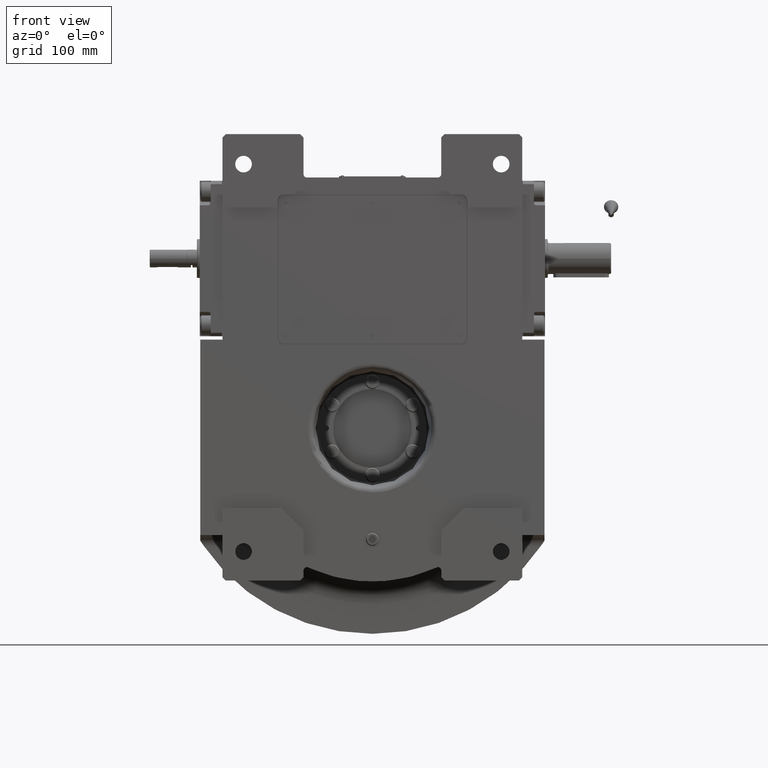
[diagram: clean part render]
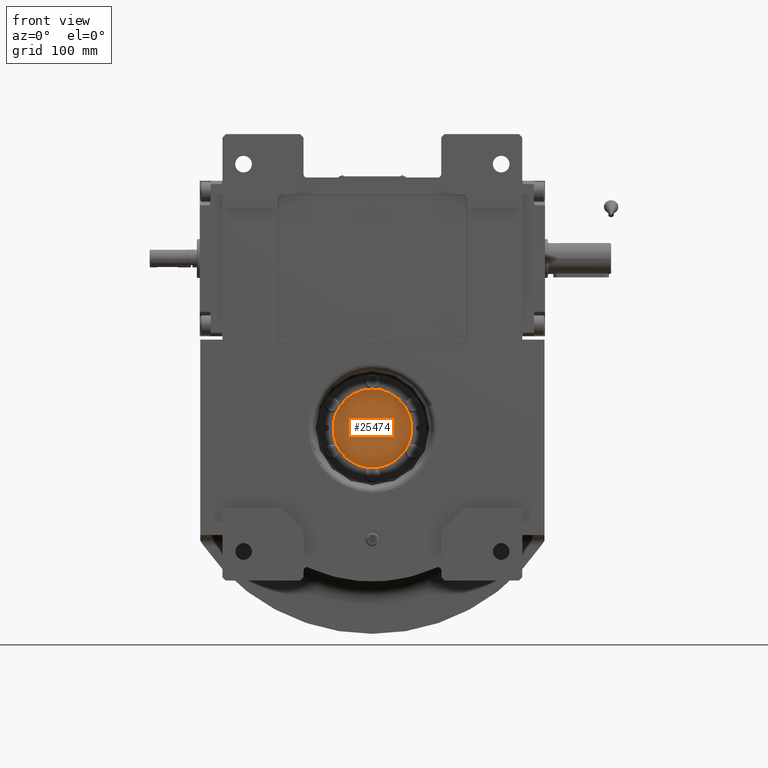
[diagram: same view with one face highlighted and labeled with its STEP entity id]
A machine part, front view. The second image highlights one B-rep face of the part: STEP entity #25474.
In plain terms, the highlighted planar face has unit normal (0, -1, 0).
Its self-contained STEP definition (entity closure, byte-faithful):
#1476 = AXIS2_PLACEMENT_3D ( 'NONE', #56978, #57321, #21075 ) ;
#2263 = ORIENTED_EDGE ( 'NONE', *, *, #5207, .F. ) ;
#3625 = CIRCLE ( 'NONE', #67094, 36.00000000000000000 ) ;
#3751 = EDGE_LOOP ( 'NONE', ( #2263, #19628 ) ) ;
#5207 = EDGE_CURVE ( 'NONE', #34107, #57535, #3625, .T. ) ;
#6010 = EDGE_CURVE ( 'NONE', #57535, #34107, #25959, .T. ) ;
#9348 = CARTESIAN_POINT ( 'NONE',  ( 36.00000000000000000, 2.019844661540766487E-15, 11.99999999999999645 ) ) ;
#14879 = AXIS2_PLACEMENT_3D ( 'NONE', #32876, #48863, #21021 ) ;
#17411 = DIRECTION ( 'NONE',  ( 1.000000000000000000, 0.000000000000000000, 0.000000000000000000 ) ) ;
#19628 = ORIENTED_EDGE ( 'NONE', *, *, #6010, .F. ) ;
#21021 = DIRECTION ( 'NONE',  ( 1.000000000000000000, 0.000000000000000000, 0.000000000000000000 ) ) ;
#21075 = DIRECTION ( 'NONE',  ( 1.000000000000000000, 0.000000000000000000, 0.000000000000000000 ) ) ;
#22039 = FACE_OUTER_BOUND ( 'NONE', #3751, .T. ) ;
#25474 = ADVANCED_FACE ( 'NONE', ( #22039 ), #27632, .T. ) ;
#25959 = CIRCLE ( 'NONE', #1476, 36.00000000000000000 ) ;
#27632 = PLANE ( 'NONE',  #14879 ) ;
#30554 = CARTESIAN_POINT ( 'NONE',  ( -36.00000000000000000, 6.428573138471200661E-15, 11.99999999999999645 ) ) ;
#32876 = CARTESIAN_POINT ( 'NONE',  ( 0.000000000000000000, 0.000000000000000000, 11.99999999999999645 ) ) ;
#34107 = VERTEX_POINT ( 'NONE', #30554 ) ;
#38317 = CARTESIAN_POINT ( 'NONE',  ( -1.232595164407830946E-29, 6.428573138471199872E-15, 11.99999999999999645 ) ) ;
#48863 = DIRECTION ( 'NONE',  ( 0.000000000000000000, 0.000000000000000000, 1.000000000000000000 ) ) ;
#49794 = DIRECTION ( 'NONE',  ( -0.000000000000000000, -0.000000000000000000, -1.000000000000000000 ) ) ;
#56978 = CARTESIAN_POINT ( 'NONE',  ( -1.232595164407830946E-29, 6.428573138471199872E-15, 11.99999999999999645 ) ) ;
#57321 = DIRECTION ( 'NONE',  ( -0.000000000000000000, -0.000000000000000000, -1.000000000000000000 ) ) ;
#57535 = VERTEX_POINT ( 'NONE', #9348 ) ;
#67094 = AXIS2_PLACEMENT_3D ( 'NONE', #38317, #49794, #17411 ) ;